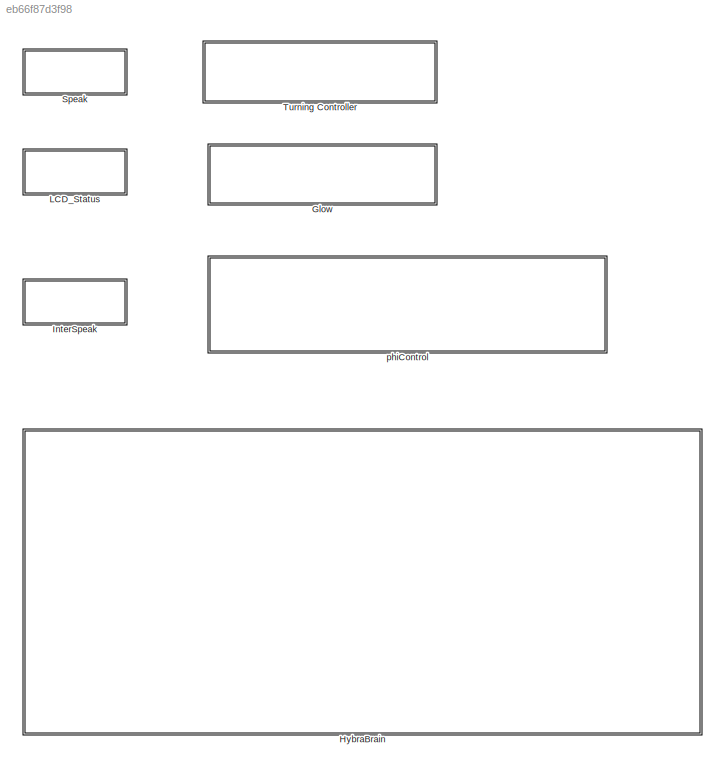
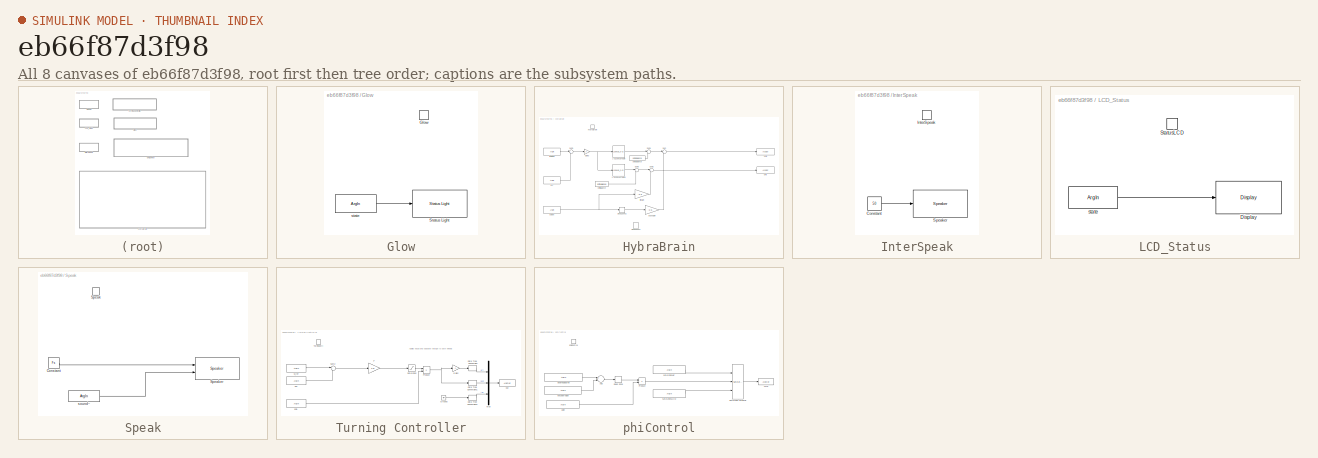
[diagram: thumbnail index - all 8 canvases of the model, root first then tree order]
MODEL slx_eb66f87d3f98
KIND library
BLOCK [SubSystem] Glow
  Ports = [0, 0, 0, 1]
  RequestExecContextInheritance = off
  TreatAsAtomicUnit = on
BLOCK [TriggerPort] Glow/Glow
  FunctionName = Glow
  IsSimulinkFunction = on
  Ports = []
  StatesWhenEnabling = held
  TriggerType = function-call
BLOCK [Reference] Glow/Status Light  REF=legoev3lib/Status Light
  Ports = [1]
  SourceBlock = legoev3lib/Status Light
  SourceType = LEGO MINDSTORMS EV3 Status Light
BLOCK [ArgIn] Glow/state
  ArgumentName = state
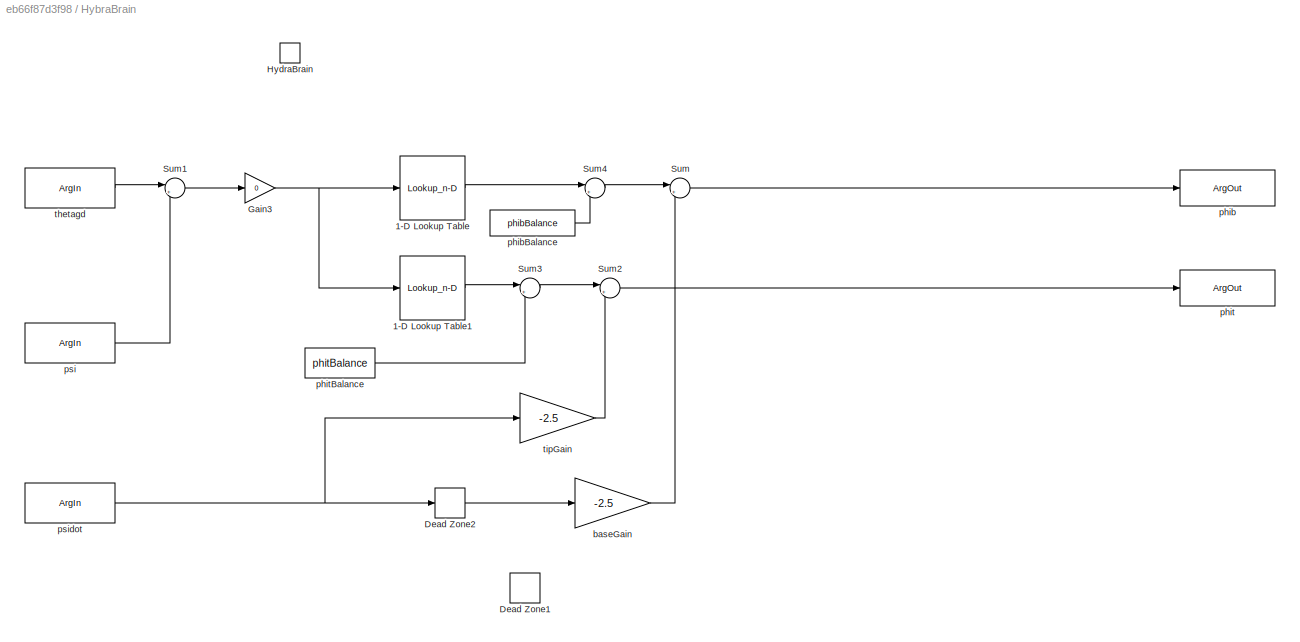
BLOCK [SubSystem] HybraBrain
  Ports = [0, 0, 0, 1]
  RequestExecContextInheritance = off
  TreatAsAtomicUnit = on
BLOCK [Lookup_n-D] HybraBrain/1-D Lookup Table
  BreakpointsForDimension1 = thetagdMod
  Commented = through
  InternalRulePriority = Speed
  NumberOfTableDimensions = 1
  Ports = [1, 1]
  RndMeth = Simplest
  Table = phib
BLOCK [Lookup_n-D] HybraBrain/1-D Lookup Table1
  BreakpointsForDimension1 = thetagdMod
  Commented = through
  InternalRulePriority = Speed
  NumberOfTableDimensions = 1
  Ports = [1, 1]
  RndMeth = Simplest
  Table = phit
BLOCK [DeadZone] HybraBrain/Dead Zone1
  Commented = through
  LowerValue = -0.05
  UpperValue = 0.05
BLOCK [DeadZone] HybraBrain/Dead Zone2
  LowerValue = -1
  UpperValue = 1
BLOCK [Gain] HybraBrain/Gain3
  Gain = 0
  OutDataTypeStr = Inherit: Inherit via internal rule
  ParamDataTypeStr = Inherit: Inherit via internal rule
  SaturateOnIntegerOverflow = off
BLOCK [TriggerPort] HybraBrain/HydraBrain
  FunctionName = HydraBrain
  IsSimulinkFunction = on
  Ports = []
  StatesWhenEnabling = held
  TriggerType = function-call
BLOCK [Sum] HybraBrain/Sum
  IconShape = round
  InputSameDT = off
  Inputs = |++
  OutDataTypeStr = Inherit: Inherit via internal rule
  Ports = [2, 1]
  SaturateOnIntegerOverflow = off
BLOCK [Sum] HybraBrain/Sum1
  IconShape = round
  InputSameDT = off
  Inputs = |++
  OutDataTypeStr = Inherit: Inherit via internal rule
  Ports = [2, 1]
  SaturateOnIntegerOverflow = off
BLOCK [Sum] HybraBrain/Sum2
  IconShape = round
  InputSameDT = off
  Inputs = |++
  OutDataTypeStr = Inherit: Inherit via internal rule
  Ports = [2, 1]
  SaturateOnIntegerOverflow = off
BLOCK [Sum] HybraBrain/Sum3
  IconShape = round
  InputSameDT = off
  Inputs = |++
  OutDataTypeStr = Inherit: Inherit via internal rule
  Ports = [2, 1]
  SaturateOnIntegerOverflow = off
BLOCK [Sum] HybraBrain/Sum4
  IconShape = round
  InputSameDT = off
  Inputs = |++
  OutDataTypeStr = Inherit: Inherit via internal rule
  Ports = [2, 1]
  SaturateOnIntegerOverflow = off
BLOCK [Gain] HybraBrain/baseGain
  Gain = -2.5
  OutDataTypeStr = Inherit: Inherit via internal rule
  ParamDataTypeStr = Inherit: Inherit via internal rule
  SaturateOnIntegerOverflow = off
BLOCK [ArgOut] HybraBrain/phib
  ArgumentName = phib
  OutDataTypeStr = single
BLOCK [Constant] HybraBrain/phibBalance
  OutDataTypeStr = single
  SampleTime = -1
  Value = phibBalance
BLOCK [ArgOut] HybraBrain/phit
  ArgumentName = phit
  OutDataTypeStr = single
  Port = 2
BLOCK [Constant] HybraBrain/phitBalance
  OutDataTypeStr = single
  SampleTime = -1
  Value = phitBalance
BLOCK [ArgIn] HybraBrain/psi
  ArgumentName = psi
  OutDataTypeStr = single
  Port = 2
BLOCK [ArgIn] HybraBrain/psidot
  ArgumentName = psidot
  OutDataTypeStr = single
  Port = 3
BLOCK [ArgIn] HybraBrain/thetagd
  ArgumentName = thetagd
  OutDataTypeStr = single
BLOCK [Gain] HybraBrain/tipGain
  Gain = -2.5
  OutDataTypeStr = Inherit: Inherit via internal rule
  ParamDataTypeStr = Inherit: Inherit via internal rule
  SaturateOnIntegerOverflow = off
BLOCK [SubSystem] InterSpeak
  Ports = [0, 0, 0, 1]
  RequestExecContextInheritance = off
  TreatAsAtomicUnit = on
BLOCK [Constant] InterSpeak/Constant
  Value = 50
BLOCK [TriggerPort] InterSpeak/InterSpeak
  FunctionName = InterSpeak
  IsSimulinkFunction = on
  Ports = []
  StatesWhenEnabling = held
  TriggerType = function-call
BLOCK [Reference] InterSpeak/Speaker  REF=legoev3lib/Speaker
  Ports = [1]
  SourceBlock = legoev3lib/Speaker
  SourceType = LEGO MINDSTORMS EV3 Speaker
  sinputMode = Volume only
  sspeakerDuration = 100
  sspeakerFreq = 100
  sspeakerVolume = 50
BLOCK [SubSystem] LCD_Status
  Ports = [0, 0, 0, 1]
  RequestExecContextInheritance = off
  TreatAsAtomicUnit = on
BLOCK [Reference] LCD_Status/Display  REF=legoev3lib/Display
  Ports = [1]
  SourceBlock = legoev3lib/Display
  SourceType = LEGO MINDSTORMS EV3 Display
  slcdFormat = Decimal
  slcdLine = 10
  slcdStr = state
BLOCK [TriggerPort] LCD_Status/StatusLCD
  FunctionName = StatusLCD
  IsSimulinkFunction = on
  Ports = []
  StatesWhenEnabling = held
  TriggerType = function-call
BLOCK [ArgIn] LCD_Status/state
  ArgumentName = state
BLOCK [SubSystem] Speak
  Ports = [0, 0, 0, 1]
  RequestExecContextInheritance = off
  TreatAsAtomicUnit = on
BLOCK [Constant] Speak/Constant
  Value = Fs
BLOCK [TriggerPort] Speak/Speak
  FunctionName = Speak
  IsSimulinkFunction = on
  Ports = []
  StatesWhenEnabling = held
  TriggerType = function-call
BLOCK [Reference] Speak/Speaker  REF=legoev3lib/Speaker
  Ports = [2]
  SourceBlock = legoev3lib/Speaker
  SourceType = LEGO MINDSTORMS EV3 Speaker
  sinputMode = Frequency and volume
  sspeakerDuration = 50
  sspeakerFreq = 100
  sspeakerVolume = 50
BLOCK [ArgIn] Speak/sound~
  ArgumentName = sound
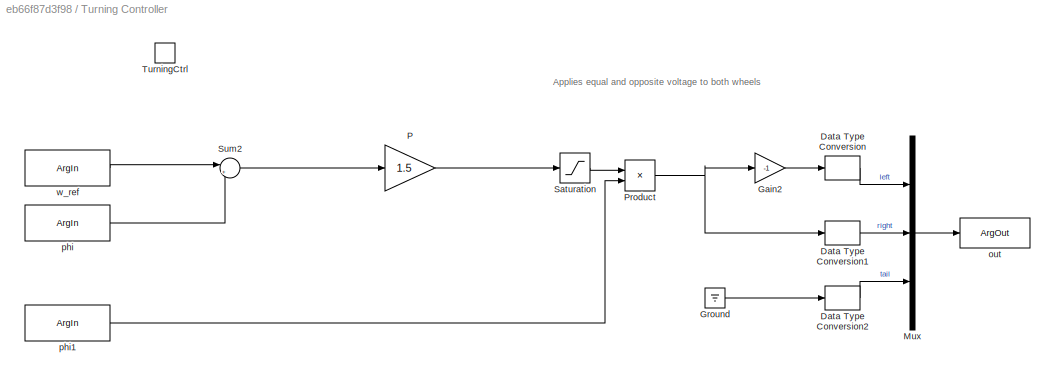
BLOCK [SubSystem] Turning Controller
  Ports = [0, 0, 0, 1]
  RequestExecContextInheritance = off
  TreatAsAtomicUnit = on
BLOCK [DataTypeConversion] Turning Controller/Data Type Conversion
  OutDataTypeStr = single
  RndMeth = Floor
  SaturateOnIntegerOverflow = off
BLOCK [DataTypeConversion] Turning Controller/Data Type Conversion1
  OutDataTypeStr = single
  RndMeth = Floor
  SaturateOnIntegerOverflow = off
BLOCK [DataTypeConversion] Turning Controller/Data Type Conversion2
  OutDataTypeStr = single
  RndMeth = Floor
  SaturateOnIntegerOverflow = off
BLOCK [Gain] Turning Controller/Gain2
  Gain = -1
  OutDataTypeStr = Inherit: Inherit via internal rule
  ParamDataTypeStr = Inherit: Inherit via internal rule
  SaturateOnIntegerOverflow = off
BLOCK [Ground] Turning Controller/Ground
BLOCK [Mux] Turning Controller/Mux
  DisplayOption = bar
  Inputs = 3
  Ports = [3, 1]
BLOCK [Gain] Turning Controller/P
  Gain = 1.5
  OutDataTypeStr = Inherit: Inherit via internal rule
  ParamDataTypeStr = Inherit: Inherit via internal rule
  SaturateOnIntegerOverflow = off
BLOCK [Product] Turning Controller/Product
  InputSameDT = off
  OutDataTypeStr = Inherit: Inherit via internal rule
  Ports = [2, 1]
  RndMeth = Floor
  SaturateOnIntegerOverflow = off
BLOCK [Saturate] Turning Controller/Saturation
  InputPortMap = u0
  LowerLimit = -2
  Ports = [1, 1]
  UpperLimit = 2
BLOCK [Sum] Turning Controller/Sum2
  IconShape = round
  InputSameDT = off
  Inputs = |+-
  OutDataTypeStr = Inherit: Inherit via internal rule
  Ports = [2, 1]
  SaturateOnIntegerOverflow = off
BLOCK [TriggerPort] Turning Controller/TurningCtrl
  FunctionName = TurningCtrl
  IsSimulinkFunction = on
  Ports = []
  StatesWhenEnabling = held
  TriggerType = function-call
BLOCK [ArgOut] Turning Controller/out
  ArgumentName = out
  OutDataTypeStr = single
  PortDimensions = 3
BLOCK [ArgIn] Turning Controller/phi
  ArgumentName = phi
  OutDataTypeStr = single
  Port = 2
BLOCK [ArgIn] Turning Controller/phi1
  ArgumentName = gain
  OutDataTypeStr = single
  Port = 3
BLOCK [ArgIn] Turning Controller/w_ref
  ArgumentName = w_ref
  OutDataTypeStr = single
BLOCK [SubSystem] phiControl
  Ports = [0, 0, 0, 1]
  RequestExecContextInheritance = off
  TreatAsAtomicUnit = on
BLOCK [Sum] phiControl/Add
  InputSameDT = off
  Inputs = +-
  OutDataTypeStr = Inherit: Inherit via internal rule
  Ports = [2, 1]
  SaturateOnIntegerOverflow = off
BLOCK [DeadZone] phiControl/Dead Zone
  LowerValue = -1
  UpperValue = 1
BLOCK [Product] phiControl/Product
  InputSameDT = off
  OutDataTypeStr = Inherit: Inherit via internal rule
  Ports = [2, 1]
  RndMeth = Floor
  SaturateOnIntegerOverflow = off
BLOCK [Reference] phiControl/Saturation Dynamic  REF=simulink/Discontinuities/Saturation
Dynamic
  DoSatur = off
  LockScale = off
  OutDataType = fixdt(1, 16)
  OutDataTypeStr = Inherit: Same as second input
  OutMax = []
  OutMin = []
  OutScaling = 2^-10
  OutputDataTypeScalingMode = Same as second input
  Ports = [3, 1]
  RndMeth = Floor
  SourceBlock = simulink/Discontinuities/Saturation\nDynamic
  SourceType = Saturation Dynamic
BLOCK [ArgOut] phiControl/cmd
  ArgumentName = cmd
  OutDataTypeStr = single
BLOCK [ArgIn] phiControl/desiredDegree
  ArgumentName = desiredDegree
  OutDataTypeStr = single
BLOCK [ArgIn] phiControl/encoderValue
  ArgumentName = encoderValue
  OutDataTypeStr = int32
  Port = 2
BLOCK [ArgIn] phiControl/gain
  ArgumentName = gain
  OutDataTypeStr = single
  Port = 3
BLOCK [TriggerPort] phiControl/phiControl
  FunctionName = phiControl
  IsSimulinkFunction = on
  Ports = []
  StatesWhenEnabling = held
  TriggerType = function-call
BLOCK [ArgIn] phiControl/saturationLOW
  ArgumentName = saturationLOW
  OutDataTypeStr = single
  Port = 5
BLOCK [ArgIn] phiControl/saturationUP
  ArgumentName = saturationUP
  OutDataTypeStr = single
  Port = 4
ANNOTATION Turning Controller: Applies equal and opposite voltage to both wheels
LINE Glow/state:1 -> Glow/Status Light:1
LINE HybraBrain/1-D Lookup Table1:1 -> HybraBrain/Sum3:1
LINE HybraBrain/1-D Lookup Table:1 -> HybraBrain/Sum4:1
LINE HybraBrain/Dead Zone2:1 -> HybraBrain/baseGain:1
NET HybraBrain/Gain3:1 -> HybraBrain/1-D Lookup Table1:1, HybraBrain/1-D Lookup Table:1
LINE HybraBrain/Sum1:1 -> HybraBrain/Gain3:1
LINE HybraBrain/Sum2:1 -> HybraBrain/phit:1
LINE HybraBrain/Sum3:1 -> HybraBrain/Sum2:1
LINE HybraBrain/Sum4:1 -> HybraBrain/Sum:1
LINE HybraBrain/Sum:1 -> HybraBrain/phib:1
LINE HybraBrain/baseGain:1 -> HybraBrain/Sum:2
LINE HybraBrain/phibBalance:1 -> HybraBrain/Sum4:2
LINE HybraBrain/phitBalance:1 -> HybraBrain/Sum3:2
LINE HybraBrain/psi:1 -> HybraBrain/Sum1:2
NET HybraBrain/psidot:1 -> HybraBrain/Dead Zone2:1, HybraBrain/tipGain:1
LINE HybraBrain/thetagd:1 -> HybraBrain/Sum1:1
LINE HybraBrain/tipGain:1 -> HybraBrain/Sum2:2
LINE InterSpeak/Constant:1 -> InterSpeak/Speaker:1
LINE LCD_Status/state:1 -> LCD_Status/Display:1
LINE Speak/Constant:1 -> Speak/Speaker:1
LINE Speak/sound~:1 -> Speak/Speaker:2
LINE Turning Controller/Data Type Conversion1:1 -> Turning Controller/Mux:2
LINE Turning Controller/Data Type Conversion2:1 -> Turning Controller/Mux:3
LINE Turning Controller/Data Type Conversion:1 -> Turning Controller/Mux:1
LINE Turning Controller/Gain2:1 -> Turning Controller/Data Type Conversion:1
LINE Turning Controller/Ground:1 -> Turning Controller/Data Type Conversion2:1
LINE Turning Controller/Mux:1 -> Turning Controller/out:1
LINE Turning Controller/P:1 -> Turning Controller/Saturation:1
NET Turning Controller/Product:1 -> Turning Controller/Data Type Conversion1:1, Turning Controller/Gain2:1
LINE Turning Controller/Saturation:1 -> Turning Controller/Product:1
LINE Turning Controller/Sum2:1 -> Turning Controller/P:1
LINE Turning Controller/phi1:1 -> Turning Controller/Product:2
LINE Turning Controller/phi:1 -> Turning Controller/Sum2:2
LINE Turning Controller/w_ref:1 -> Turning Controller/Sum2:1
LINE phiControl/Add:1 -> phiControl/Dead Zone:1
LINE phiControl/Dead Zone:1 -> phiControl/Product:1
LINE phiControl/Product:1 -> phiControl/Saturation Dynamic:2
LINE phiControl/Saturation Dynamic:1 -> phiControl/cmd:1
LINE phiControl/desiredDegree:1 -> phiControl/Add:1
LINE phiControl/encoderValue:1 -> phiControl/Add:2
LINE phiControl/gain:1 -> phiControl/Product:2
LINE phiControl/saturationLOW:1 -> phiControl/Saturation Dynamic:3
LINE phiControl/saturationUP:1 -> phiControl/Saturation Dynamic:1
note: NET lines group one-source signal fan-out (src -> all destinations, sorted); 1:1 wires keep LINE
